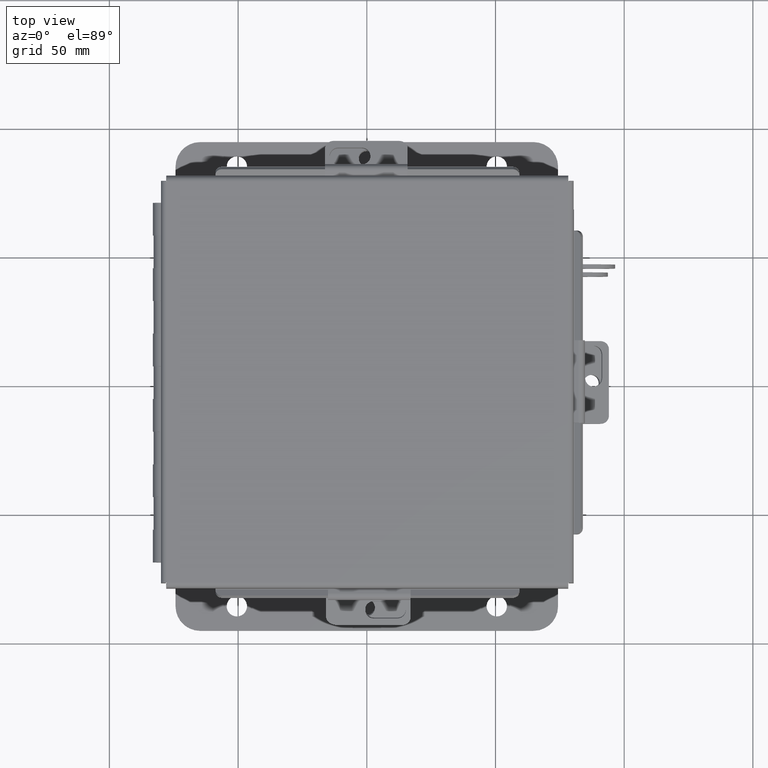
[diagram: clean part render]
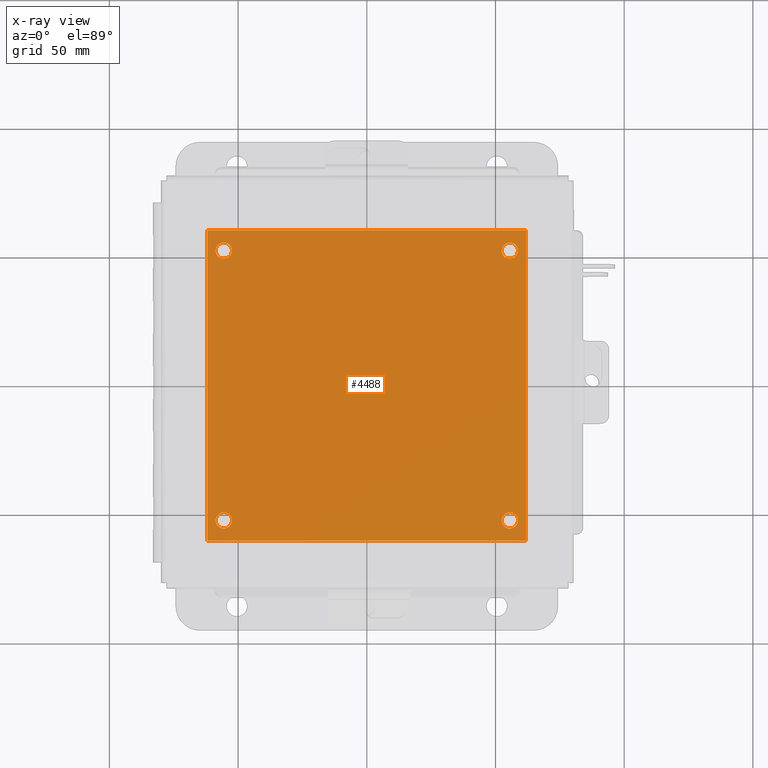
[diagram: x-ray — body ghosted, one internal face saturated and labeled with its STEP entity id]
A machine part, top view, then the same camera in x-ray: the body is ghosted and one INTERNAL B-rep face — a face not visible from any outside direction — is saturated and labeled: STEP entity #4488.
In plain terms, the highlighted planar face has unit normal (0, 0, -1).
Its self-contained STEP definition (entity closure, byte-faithful):
#49 = EDGE_LOOP ( 'NONE', ( #12736, #10801 ) ) ;
#208 = CIRCLE ( 'NONE', #5600, 0.1249999999999999000 ) ;
#321 = CARTESIAN_POINT ( 'NONE',  ( 4.875000000000000000, 4.749999999999999100, -0.07470000000000003000 ) ) ;
#395 = CARTESIAN_POINT ( 'NONE',  ( 4.750000000000000900, 0.3120000000000009400, -0.07470000000000003000 ) ) ;
#610 = ORIENTED_EDGE ( 'NONE', *, *, #13786, .F. ) ;
#860 = CARTESIAN_POINT ( 'NONE',  ( 0.0000000000000000000, 4.749999999999999100, -0.07470000000000003000 ) ) ;
#1111 = CARTESIAN_POINT ( 'NONE',  ( 4.625000000000000900, 0.3120000000000009400, -0.07470000000000003000 ) ) ;
#1203 = CARTESIAN_POINT ( 'NONE',  ( 0.2500000000000000600, 4.437999999999998800, -0.07470000000000003000 ) ) ;
#1289 = VERTEX_POINT ( 'NONE', #12450 ) ;
#1385 = AXIS2_PLACEMENT_3D ( 'NONE', #12701, #3368, #7174 ) ;
#1390 = CARTESIAN_POINT ( 'NONE',  ( 0.1250000000000000600, 4.437999999999998800, -0.07470000000000003000 ) ) ;
#1469 = AXIS2_PLACEMENT_3D ( 'NONE', #7251, #6180, #8258 ) ;
#1472 = ORIENTED_EDGE ( 'NONE', *, *, #11923, .T. ) ;
#1495 = LINE ( 'NONE', #3478, #10274 ) ;
#1540 = EDGE_LOOP ( 'NONE', ( #8535, #5658 ) ) ;
#1655 = DIRECTION ( 'NONE',  ( -0.0000000000000000000, -0.0000000000000000000, 1.000000000000000000 ) ) ;
#1669 = DIRECTION ( 'NONE',  ( -1.000000000000000000, 0.0000000000000000000, 0.0000000000000000000 ) ) ;
#1703 = EDGE_CURVE ( 'NONE', #3596, #10060, #9486, .T. ) ;
#1808 = DIRECTION ( 'NONE',  ( -0.0000000000000000000, -0.0000000000000000000, 1.000000000000000000 ) ) ;
#1879 = DIRECTION ( 'NONE',  ( -1.000000000000000000, 0.0000000000000000000, -0.0000000000000000000 ) ) ;
#1895 = DIRECTION ( 'NONE',  ( -0.0000000000000000000, -0.0000000000000000000, 1.000000000000000000 ) ) ;
#2036 = EDGE_CURVE ( 'NONE', #13671, #3107, #208, .T. ) ;
#2073 = VECTOR ( 'NONE', #10418, 39.37007874015748100 ) ;
#2145 = VERTEX_POINT ( 'NONE', #1390 ) ;
#2200 = DIRECTION ( 'NONE',  ( -1.000000000000000000, 0.0000000000000000000, 0.0000000000000000000 ) ) ;
#2305 = DIRECTION ( 'NONE',  ( -1.000000000000000000, 0.0000000000000000000, 0.0000000000000000000 ) ) ;
#2311 = CARTESIAN_POINT ( 'NONE',  ( 0.3750000000000020000, 0.3120000000000015000, -0.07470000000000003000 ) ) ;
#2361 = CARTESIAN_POINT ( 'NONE',  ( 0.0000000000000000000, 0.0000000000000000000, -0.07470000000000003000 ) ) ;
#2468 = EDGE_CURVE ( 'NONE', #4254, #7248, #13093, .T. ) ;
#2497 = DIRECTION ( 'NONE',  ( -0.0000000000000000000, -0.0000000000000000000, 1.000000000000000000 ) ) ;
#2510 = CARTESIAN_POINT ( 'NONE',  ( 0.3750000000000001100, 4.437999999999998800, -0.07470000000000003000 ) ) ;
#2927 = EDGE_LOOP ( 'NONE', ( #1472, #5162 ) ) ;
#3107 = VERTEX_POINT ( 'NONE', #395 ) ;
#3368 = DIRECTION ( 'NONE',  ( -0.0000000000000000000, -0.0000000000000000000, 1.000000000000000000 ) ) ;
#3478 = CARTESIAN_POINT ( 'NONE',  ( 0.0000000000000000000, 0.0000000000000000000, -0.07470000000000003000 ) ) ;
#3596 = VERTEX_POINT ( 'NONE', #7627 ) ;
#4230 = CARTESIAN_POINT ( 'NONE',  ( 4.750000000000000000, 4.437999999999998800, -0.07470000000000003000 ) ) ;
#4254 = VERTEX_POINT ( 'NONE', #7772 ) ;
#4488 = ADVANCED_FACE ( 'NONE', ( #5245, #13680, #10750, #7833, #4907 ), #11749, .T. ) ;
#4730 = AXIS2_PLACEMENT_3D ( 'NONE', #8242, #1655, #9349 ) ;
#4799 = EDGE_CURVE ( 'NONE', #8213, #1289, #12806, .T. ) ;
#4907 = FACE_OUTER_BOUND ( 'NONE', #8390, .T. ) ;
#5162 = ORIENTED_EDGE ( 'NONE', *, *, #2468, .T. ) ;
#5245 = FACE_BOUND ( 'NONE', #1540, .T. ) ;
#5333 = CIRCLE ( 'NONE', #4730, 0.1250000000000000600 ) ;
#5600 = AXIS2_PLACEMENT_3D ( 'NONE', #13668, #1808, #1669 ) ;
#5658 = ORIENTED_EDGE ( 'NONE', *, *, #1703, .T. ) ;
#5739 = AXIS2_PLACEMENT_3D ( 'NONE', #1203, #8890, #2305 ) ;
#5816 = CARTESIAN_POINT ( 'NONE',  ( 0.0000000000000000000, 4.749999999999999100, -0.07470000000000003000 ) ) ;
#6046 = EDGE_CURVE ( 'NONE', #9123, #2145, #7449, .T. ) ;
#6143 = EDGE_CURVE ( 'NONE', #2145, #9123, #6407, .T. ) ;
#6180 = DIRECTION ( 'NONE',  ( -0.0000000000000000000, -0.0000000000000000000, 1.000000000000000000 ) ) ;
#6407 = CIRCLE ( 'NONE', #13827, 0.1250000000000000000 ) ;
#6866 = EDGE_LOOP ( 'NONE', ( #12036, #14008 ) ) ;
#7037 = ORIENTED_EDGE ( 'NONE', *, *, #14183, .F. ) ;
#7174 = DIRECTION ( 'NONE',  ( -1.000000000000000000, 0.0000000000000000000, 0.0000000000000000000 ) ) ;
#7248 = VERTEX_POINT ( 'NONE', #4230 ) ;
#7251 = CARTESIAN_POINT ( 'NONE',  ( 0.2500000000000020000, 0.3120000000000015000, -0.07470000000000003000 ) ) ;
#7449 = CIRCLE ( 'NONE', #5739, 0.1250000000000000000 ) ;
#7627 = CARTESIAN_POINT ( 'NONE',  ( 0.1250000000000019200, 0.3120000000000015000, -0.07470000000000003000 ) ) ;
#7640 = CARTESIAN_POINT ( 'NONE',  ( 4.500000000000000900, 0.3120000000000009400, -0.07470000000000003000 ) ) ;
#7772 = CARTESIAN_POINT ( 'NONE',  ( 4.500000000000000000, 4.437999999999998800, -0.07470000000000003000 ) ) ;
#7832 = AXIS2_PLACEMENT_3D ( 'NONE', #13949, #8473, #1879 ) ;
#7833 = FACE_BOUND ( 'NONE', #49, .T. ) ;
#8213 = VERTEX_POINT ( 'NONE', #5816 ) ;
#8242 = CARTESIAN_POINT ( 'NONE',  ( 0.2500000000000020000, 0.3120000000000015000, -0.07470000000000003000 ) ) ;
#8258 = DIRECTION ( 'NONE',  ( -1.000000000000000000, 0.0000000000000000000, 0.0000000000000000000 ) ) ;
#8276 = AXIS2_PLACEMENT_3D ( 'NONE', #8481, #1895, #9581 ) ;
#8390 = EDGE_LOOP ( 'NONE', ( #11929, #7037, #12873, #610 ) ) ;
#8473 = DIRECTION ( 'NONE',  ( 0.0000000000000000000, 0.0000000000000000000, -1.000000000000000000 ) ) ;
#8481 = CARTESIAN_POINT ( 'NONE',  ( 4.625000000000000000, 4.437999999999998800, -0.07470000000000003000 ) ) ;
#8535 = ORIENTED_EDGE ( 'NONE', *, *, #8547, .T. ) ;
#8547 = EDGE_CURVE ( 'NONE', #10060, #3596, #5333, .T. ) ;
#8806 = DIRECTION ( 'NONE',  ( -0.0000000000000000000, -0.0000000000000000000, 1.000000000000000000 ) ) ;
#8890 = DIRECTION ( 'NONE',  ( -0.0000000000000000000, -0.0000000000000000000, 1.000000000000000000 ) ) ;
#9090 = CARTESIAN_POINT ( 'NONE',  ( 0.2500000000000000600, 4.437999999999998800, -0.07470000000000003000 ) ) ;
#9123 = VERTEX_POINT ( 'NONE', #2510 ) ;
#9201 = VERTEX_POINT ( 'NONE', #9382 ) ;
#9313 = CARTESIAN_POINT ( 'NONE',  ( 4.875000000000000000, 0.0000000000000000000, -0.07470000000000003000 ) ) ;
#9349 = DIRECTION ( 'NONE',  ( -1.000000000000000000, 0.0000000000000000000, 0.0000000000000000000 ) ) ;
#9382 = CARTESIAN_POINT ( 'NONE',  ( 4.875000000000000000, 0.0000000000000000000, -0.07470000000000003000 ) ) ;
#9486 = CIRCLE ( 'NONE', #1469, 0.1250000000000000600 ) ;
#9581 = DIRECTION ( 'NONE',  ( -1.000000000000000000, 0.0000000000000000000, 0.0000000000000000000 ) ) ;
#9888 = VECTOR ( 'NONE', #10065, 39.37007874015748100 ) ;
#9969 = EDGE_CURVE ( 'NONE', #3107, #13671, #12368, .T. ) ;
#10060 = VERTEX_POINT ( 'NONE', #2311 ) ;
#10065 = DIRECTION ( 'NONE',  ( -0.0000000000000000000, -1.000000000000000000, -0.0000000000000000000 ) ) ;
#10067 = DIRECTION ( 'NONE',  ( 1.000000000000000000, 0.0000000000000000000, 0.0000000000000000000 ) ) ;
#10210 = DIRECTION ( 'NONE',  ( -1.000000000000000000, 0.0000000000000000000, 0.0000000000000000000 ) ) ;
#10274 = VECTOR ( 'NONE', #10067, 39.37007874015748100 ) ;
#10418 = DIRECTION ( 'NONE',  ( 0.0000000000000000000, 1.000000000000000000, 0.0000000000000000000 ) ) ;
#10478 = CIRCLE ( 'NONE', #8276, 0.1249999999999999000 ) ;
#10750 = FACE_BOUND ( 'NONE', #2927, .T. ) ;
#10801 = ORIENTED_EDGE ( 'NONE', *, *, #6143, .T. ) ;
#10830 = EDGE_CURVE ( 'NONE', #9201, #11378, #13774, .T. ) ;
#11014 = AXIS2_PLACEMENT_3D ( 'NONE', #1111, #8806, #2200 ) ;
#11030 = VECTOR ( 'NONE', #14056, 39.37007874015748100 ) ;
#11378 = VERTEX_POINT ( 'NONE', #321 ) ;
#11749 = PLANE ( 'NONE',  #7832 ) ;
#11923 = EDGE_CURVE ( 'NONE', #7248, #4254, #10478, .T. ) ;
#11929 = ORIENTED_EDGE ( 'NONE', *, *, #4799, .F. ) ;
#12036 = ORIENTED_EDGE ( 'NONE', *, *, #9969, .T. ) ;
#12368 = CIRCLE ( 'NONE', #11014, 0.1249999999999999000 ) ;
#12450 = CARTESIAN_POINT ( 'NONE',  ( 0.0000000000000000000, 0.0000000000000000000, -0.07470000000000003000 ) ) ;
#12701 = CARTESIAN_POINT ( 'NONE',  ( 4.625000000000000000, 4.437999999999998800, -0.07470000000000003000 ) ) ;
#12736 = ORIENTED_EDGE ( 'NONE', *, *, #6046, .T. ) ;
#12806 = LINE ( 'NONE', #2361, #9888 ) ;
#12873 = ORIENTED_EDGE ( 'NONE', *, *, #10830, .F. ) ;
#13093 = CIRCLE ( 'NONE', #1385, 0.1249999999999999000 ) ;
#13668 = CARTESIAN_POINT ( 'NONE',  ( 4.625000000000000900, 0.3120000000000009400, -0.07470000000000003000 ) ) ;
#13671 = VERTEX_POINT ( 'NONE', #7640 ) ;
#13680 = FACE_BOUND ( 'NONE', #6866, .T. ) ;
#13774 = LINE ( 'NONE', #9313, #2073 ) ;
#13786 = EDGE_CURVE ( 'NONE', #1289, #9201, #1495, .T. ) ;
#13827 = AXIS2_PLACEMENT_3D ( 'NONE', #9090, #2497, #10210 ) ;
#13945 = LINE ( 'NONE', #860, #11030 ) ;
#13949 = CARTESIAN_POINT ( 'NONE',  ( 0.0000000000000000000, 0.0000000000000000000, -0.07470000000000003000 ) ) ;
#14008 = ORIENTED_EDGE ( 'NONE', *, *, #2036, .T. ) ;
#14056 = DIRECTION ( 'NONE',  ( -1.000000000000000000, -0.0000000000000000000, -0.0000000000000000000 ) ) ;
#14183 = EDGE_CURVE ( 'NONE', #11378, #8213, #13945, .T. ) ;